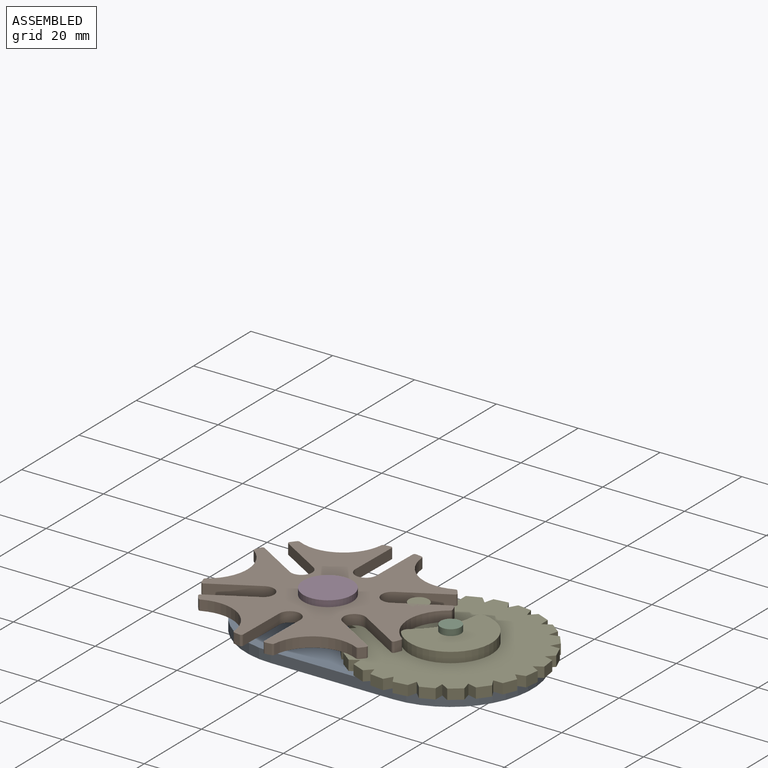
[diagram: assembled view]
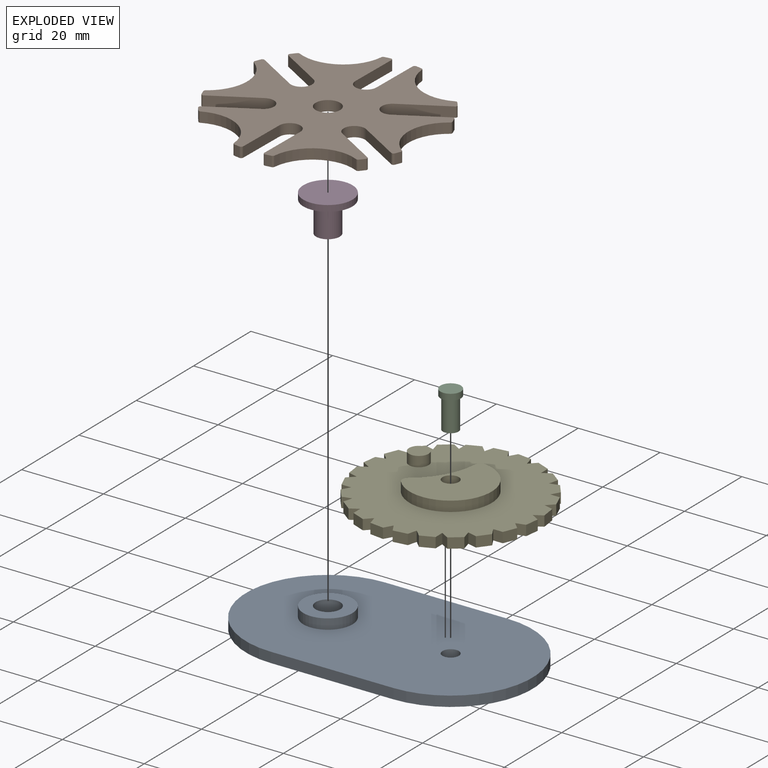
[diagram: exploded view]
GUIDED TOUR — MATED ASSEMBLY (Onshape document e8fcbac895ce5ac6a85feea2, AutoMate assembly e8fcbac895ce5ac6a85feea2_f703bed6a14e8e8e04eb389f_74b9abaeb7ac59ebc6e76224_default)

This assembly has 5 components, labeled P0..P4 below (a component is one placed occurrence of a part; the same part can appear more than once), held together by 8 mates. A mate is a constraint between two components; its type names the relative motion it leaves free:
  CYLINDRICAL — leaves both rotation about and translation along the listed axis free,
  PLANAR — leaves sliding in the plane through the listed point (normal = the listed direction) and rotation about that normal free.
Axis/direction vectors are unit vectors and 'through' points are millimeter coordinates, both in the assembly's world frame.

MATES
  1. CYLINDRICAL "Cylindrical 4": P0 <-> P2, axis (0.000, 0.000, -1.000) through (25.08, -28.87, -20.59) mm
  2. CYLINDRICAL "Cylindrical 5": P4 <-> P0, axis (0.000, 0.000, -1.000) through (25.08, -28.87, -18.09) mm
  3. PLANAR "Planar 3": P3 <-> P1, direction (0.000, 0.000, -1.000) through (-4.92, -28.87, -13.09) mm
  4. CYLINDRICAL "Cylindrical 1": P1 <-> P0, axis (0.000, 0.000, -1.000) through (-4.92, -28.87, -15.59) mm
  5. CYLINDRICAL "Cylindrical 3": P3 <-> P0, axis (0.000, 0.000, -1.000) through (-4.92, -28.87, -20.59) mm
  6. PLANAR "Planar 1": P1 <-> P0, direction (0.000, 0.000, -1.000) through (-4.92, -28.87, -15.59) mm
  7. PLANAR "Planar 4": P2 <-> P0, direction (0.000, 0.000, -1.000) through (25.08, -28.87, -20.59) mm
  8. PLANAR "Planar 2": P4 <-> P0, direction (0.000, 0.000, -1.000) through (25.08, -28.87, -18.09) mm

ASSEMBLY ORDER
  1. P0 — the base component [order heuristic]
  2. P4 — core [order heuristic]
  3. P2 [order verified]
  4. P1 — core [order heuristic]
  5. P3 — core [order heuristic]
Order-tag legend:
  [order verified] — this step's position reverses a verified removal order: the component was checked to insert without passing through the ones already placed.
  [order heuristic] — the first 4 components form the assembly's core: parts whose collision-free extraction could not be verified, listed in mate-graph order.

Of the 5 components, 3 carry the full construction recipe — the FeatureScript program that regenerates the part's solid from scratch; the rest are supplied as boundary geometry only.
Each toured component is shown spotlighted twice — in the assembled view, then in the exploded view, where a leader line traces a displaced component back to its assembled socket (saturated green if recipe-attached, orange if geometry-only; every other component desaturated gray) — followed by its recipe or geometry summary and the mates that hold it.
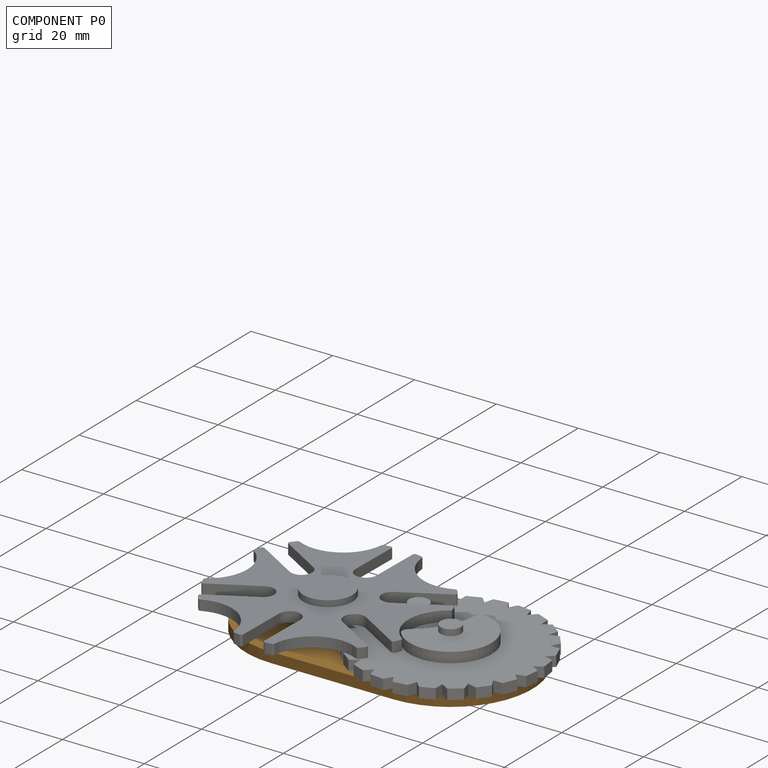
[diagram: component P0 — assembled]
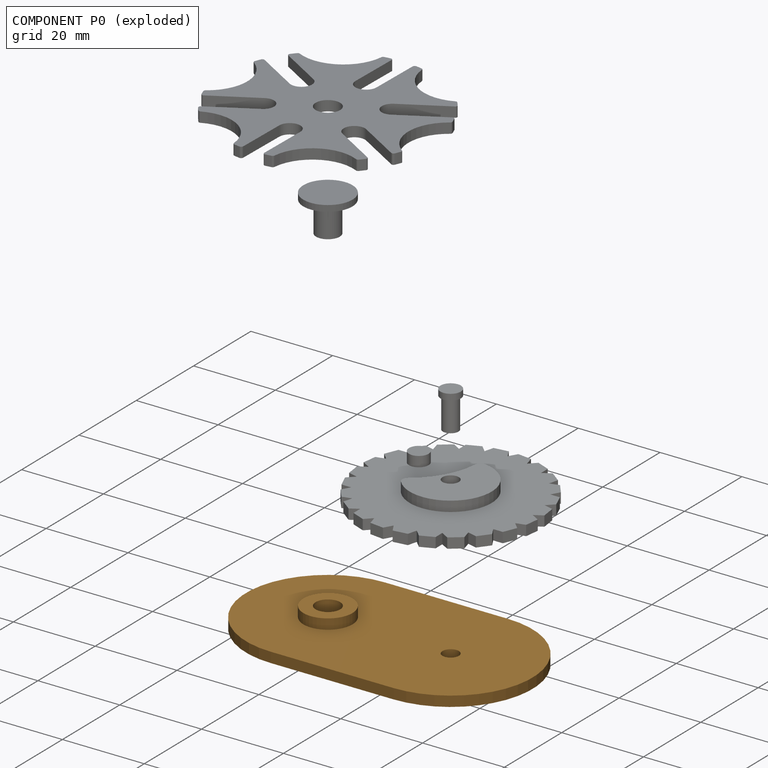
[diagram: component P0 — exploded]
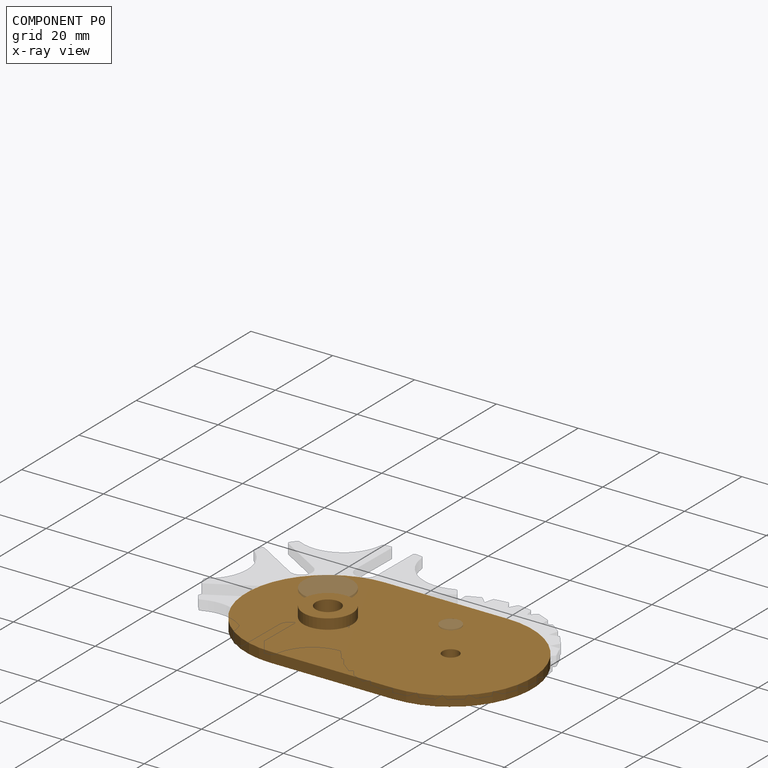
[diagram: component P0 — x-ray view]
COMPONENT P0 — geometry summary (no construction recipe available for this part):
  bounding box: 70.0 x 40.0 x 5.0 mm
  B-rep topology: 1 solid, 10 faces, 42 edges
  volume: 6252 mm^3 (45% of its bounding box)
  symmetry: mirror-symmetric across its y mid-plane
Held by: CYLINDRICAL mate "Cylindrical 4" to P2; CYLINDRICAL mate "Cylindrical 5" to P4; CYLINDRICAL mate "Cylindrical 1" to P1; CYLINDRICAL mate "Cylindrical 3" to P3; PLANAR mate "Planar 1" to P1; PLANAR mate "Planar 4" to P2; PLANAR mate "Planar 2" to P4.
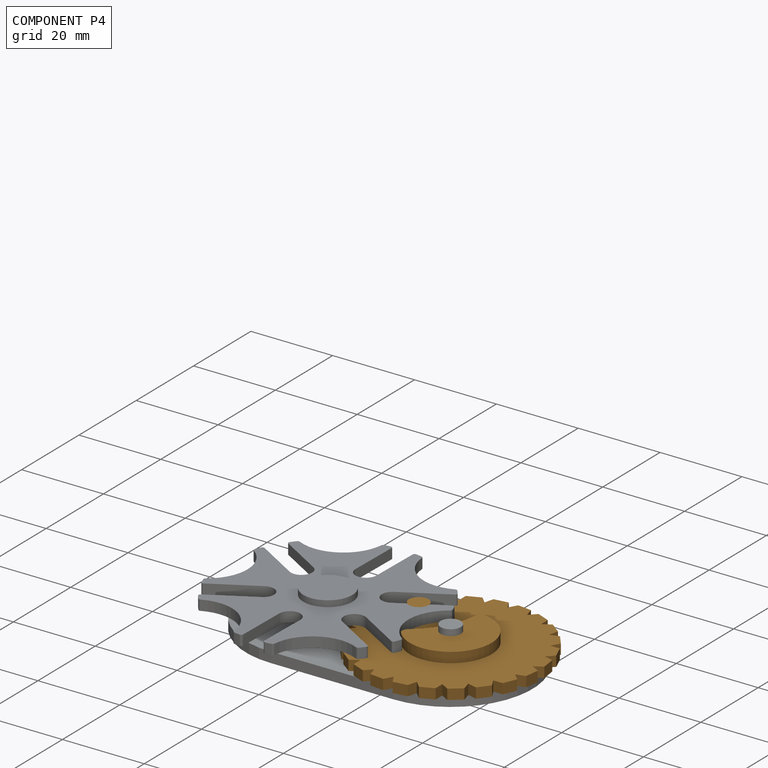
[diagram: component P4 — assembled]
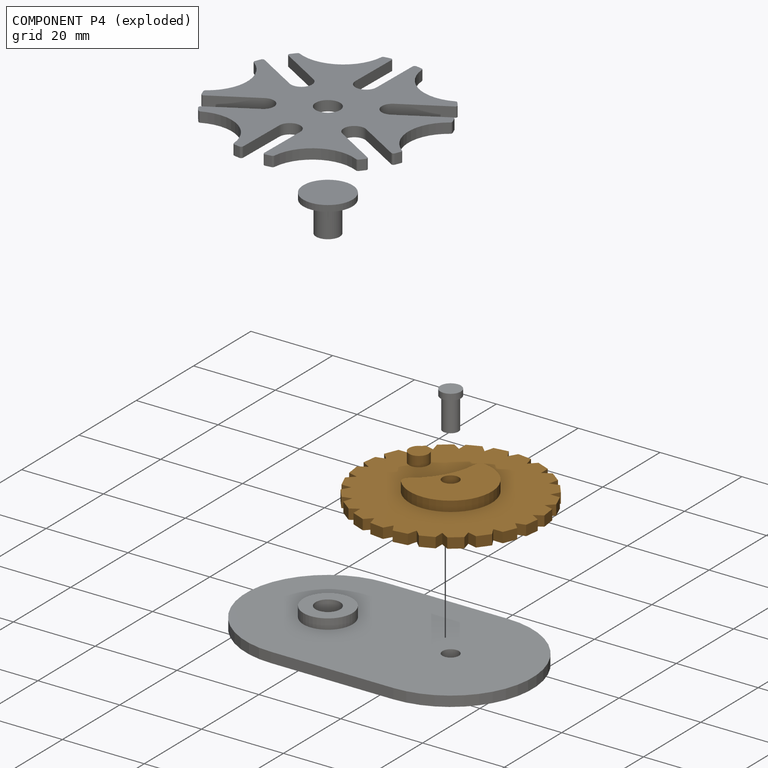
[diagram: component P4 — exploded]
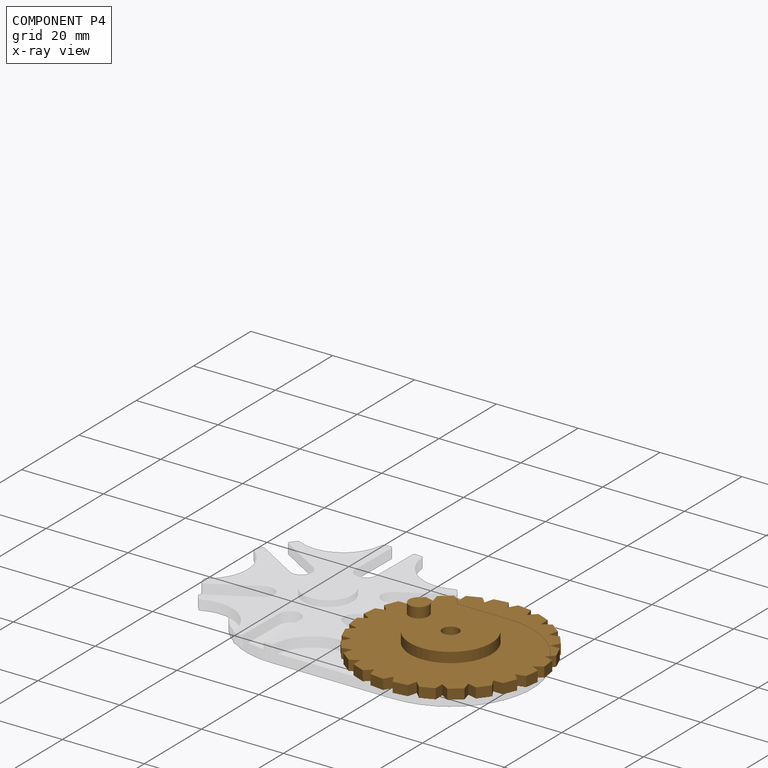
[diagram: component P4 — x-ray view]
COMPONENT P4 — geometry summary (no construction recipe available for this part):
  bounding box: 44.1 x 44.1 x 5.0 mm
  B-rep topology: 1 solid, 82 faces, 468 edges
  volume: 4212 mm^3 (43% of its bounding box)
Held by: CYLINDRICAL mate "Cylindrical 5" to P0; PLANAR mate "Planar 2" to P0.
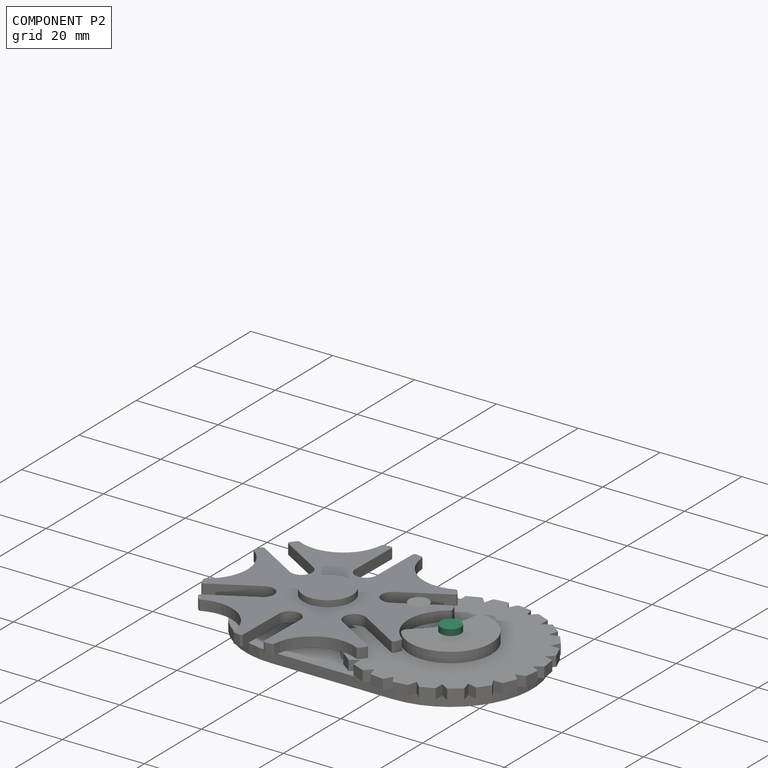
[diagram: component P2 — assembled]
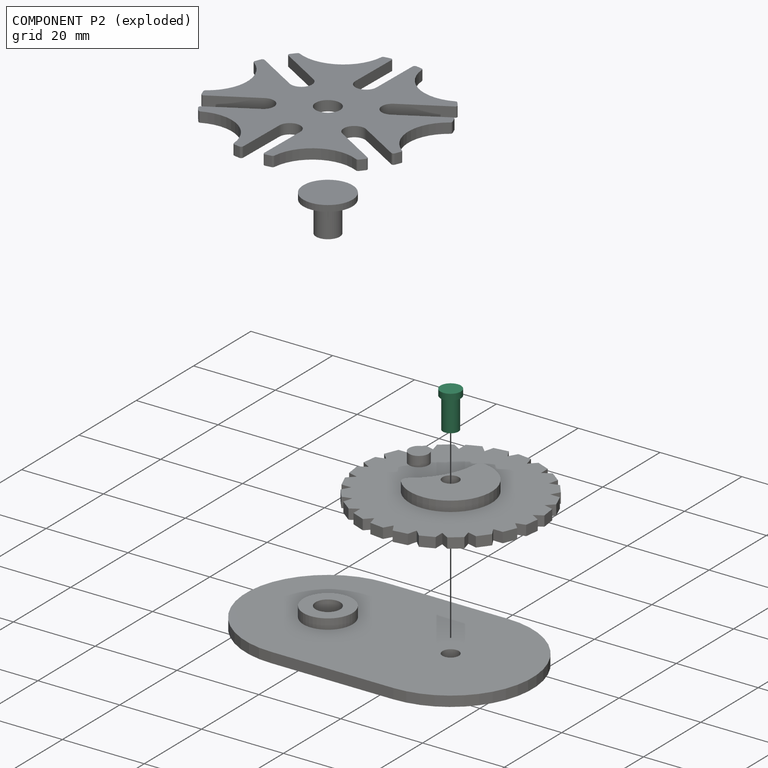
[diagram: component P2 — exploded]
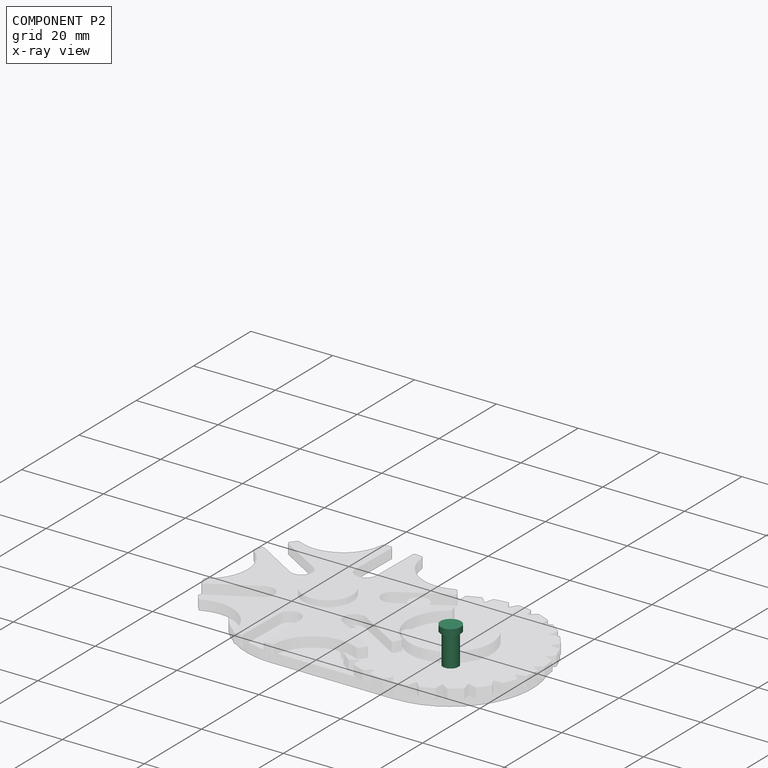
[diagram: component P2 — x-ray view]
COMPONENT P2 — recipe-attached (CADFS 00344671, mesh-verified: the recipe's output STEP matches this component's geometry to below the mesh-comparison resolution (tessellation chordal tolerance ~0.0172 mm)).
Held by: CYLINDRICAL mate "Cylindrical 4" to P0; PLANAR mate "Planar 4" to P0.
Construction recipe (FeatureScript — the CAD program that rebuilds this solid; sketch coordinates are in the units given by the * unit suffixes, e.g. mm):

FeatureScript 1511;
import(path : "onshape/std/geometry.fs", version : "1511.0");
import(path : "onshape/std/common.fs", version : "1511.0");
const mm = millimeter;
const VERTEX = EntityType.VERTEX;
const EDGE = EntityType.EDGE;
const FACE = EntityType.FACE;
const BODY = EntityType.BODY;
function v(x, y){return vector(x, y);}
function OD(order){return orderDisambiguation(order);}
function OSD(set){return originalSetDisambiguation(set);}
function TD(topology){return topologyDisambiguation(topology);}
function TDD(query){return trueDependencyDisambiguation(query);}
function sQuery(a, b, c) {return sketchEntityQuery(a, b, c);}

annotation { "Feature Type Name" : "Feature", "Feature Type Description" : "" }
export const myFeature = defineFeature(function(context is Context, id is Id, definition is map)
    precondition{}
    {
        {
            var Q0;
            Q0=qCreatedBy(makeId("Top.planeOp"),FACE);
            var sketch = newSketch(context, id + "F0", { "sketchPlane" : qUnion([Q0])});
            skCircle(sketch, "E0", {"center": v(0, 0) * mm, "radius": 1.9 * mm});
            skCircle(sketch, "E1", {"center": v(0, 0) * mm, "radius": 2.5 * mm});
            skSolve(sketch);
        }
        {
            var Q0;
            Q0=makeQuery(id+"F0.imprint","IMPRINT",FACE,{"disambiguationData":[TD([[makeQuery(id+"F0.imprint","IMPRINT",EDGE,{"derivedFrom":sQuery(id+"F0.wireOp",EDGE,"E0")}),1.0]])]});
            extrude(context, id + "F1", {"entities" : qUnion([Q0]), "oppositeDirection" : true, "depth" : 7.5 * mm});
        }
        {
            var Q0;
            Q0 = qSketchRegion(id + "F0", true);
            var Q1;
            Q1=makeQuery(id+"F0.imprint","IMPRINT",FACE,{"disambiguationData":[TD([[makeQuery(id+"F0.imprint","IMPRINT",EDGE,{"derivedFrom":sQuery(id+"F0.wireOp",EDGE,"E0")}),1.0]])]});
            extrude(context, id + "F2", {"entities" : qUnion([Q0, Q1]), "operationType" : NewBodyOperationType.ADD, "depth" : 1.5 * mm});
        }
    });
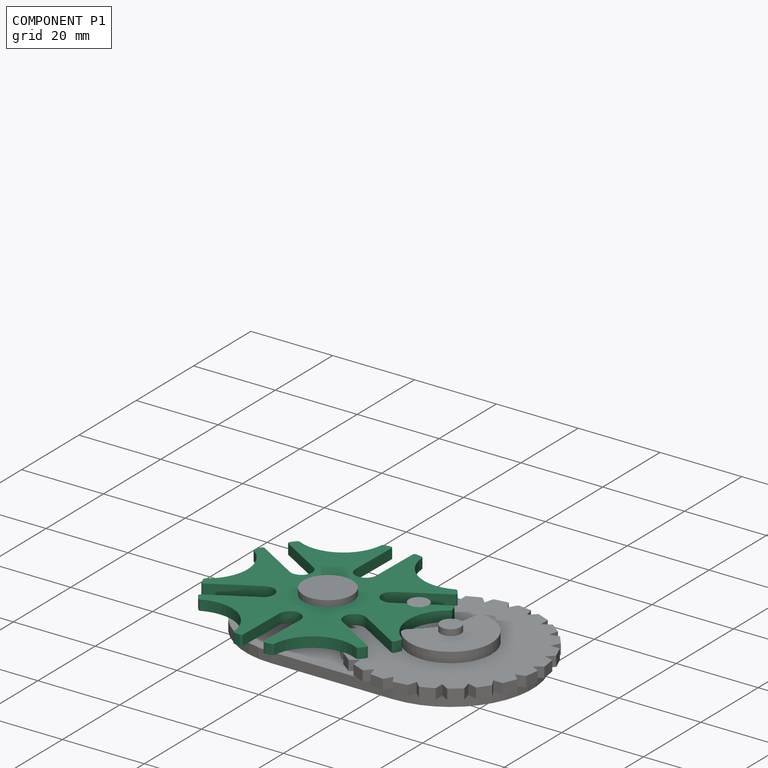
[diagram: component P1 — assembled]
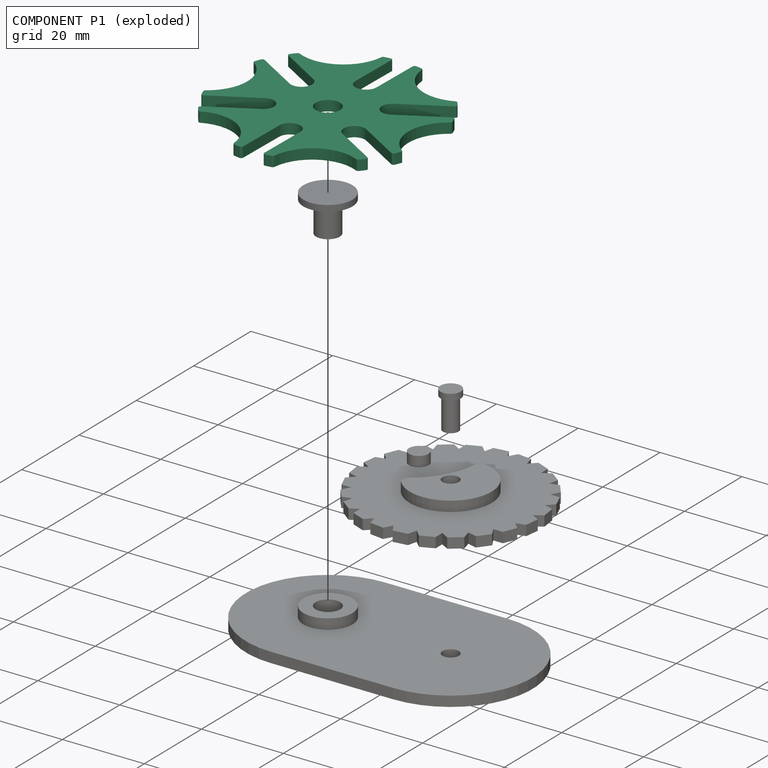
[diagram: component P1 — exploded]
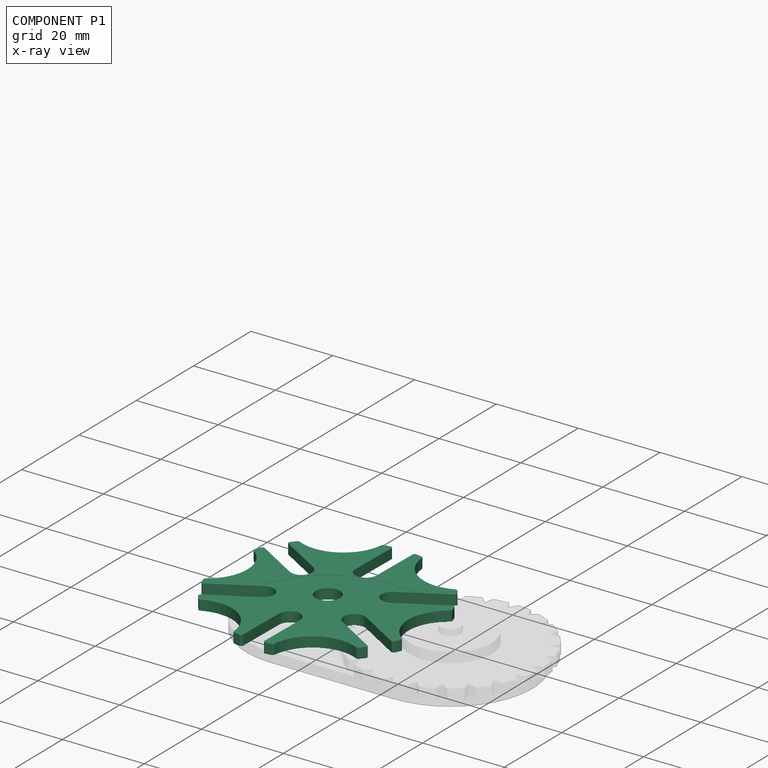
[diagram: component P1 — x-ray view]
COMPONENT P1 — recipe-attached (CADFS 00344669, mesh-verified: the recipe's output STEP matches this component's geometry to below the mesh-comparison resolution (tessellation chordal tolerance ~0.107 mm)).
Held by: PLANAR mate "Planar 3" to P3; CYLINDRICAL mate "Cylindrical 1" to P0; PLANAR mate "Planar 1" to P0.
Construction recipe (FeatureScript — the CAD program that rebuilds this solid; sketch coordinates are in the units given by the * unit suffixes, e.g. mm):

FeatureScript 1511;
import(path : "onshape/std/geometry.fs", version : "1511.0");
import(path : "onshape/std/common.fs", version : "1511.0");
const mm = millimeter;
const VERTEX = EntityType.VERTEX;
const EDGE = EntityType.EDGE;
const FACE = EntityType.FACE;
const BODY = EntityType.BODY;
function v(x, y){return vector(x, y);}
function OD(order){return orderDisambiguation(order);}
function OSD(set){return originalSetDisambiguation(set);}
function TD(topology){return topologyDisambiguation(topology);}
function TDD(query){return trueDependencyDisambiguation(query);}
function sQuery(a, b, c) {return sketchEntityQuery(a, b, c);}

annotation { "Feature Type Name" : "Feature", "Feature Type Description" : "" }
export const myFeature = defineFeature(function(context is Context, id is Id, definition is map)
    precondition{}
    {
        {
            var Q0;
            Q0=qCreatedBy(makeId("Top.planeOp"),FACE);
            var sketch = newSketch(context, id + "F0", { "sketchPlane" : qUnion([Q0])});
            skLineSegment(sketch, "E0", {"start": v(0, 0) * mm, "end": v(22.5, 13) * mm, "construction": true});
            skLineSegment(sketch, "E1", {"start": v(22.5, 13) * mm, "end": v(30, 0) * mm});
            skLineSegment(sketch, "E2", {"start": v(30, 0) * mm, "end": v(0, 0) * mm, "construction": true});
            skCircle(sketch, "E3", {"center": v(0, 0) * mm, "radius": 25.98 * mm, "construction": true});
            skLineSegment(sketch, "E4", {"start": v(30, 0) * mm, "end": v(20, 17.32) * mm, "construction": true});
            skLineSegment(sketch, "E5", {"start": v(20, 17.32) * mm, "end": v(20, 0) * mm, "construction": true});
            skLineSegment(sketch, "E6", {"start": v(21.09, 15.18) * mm, "end": v(9.95, 8.75) * mm});
            skLineSegment(sketch, "E7", {"start": v(23.69, 10.67) * mm, "end": v(12.55, 4.24) * mm});
            skArc(sketch, "E8", {"start": v(9.95, 8.75) * mm, "mid": v(9, 5.2) * mm, "end": v(12.55, 4.24) * mm});
            skArc(sketch, "E9", {"start": v(24.58, 8.4) * mm, "mid": v(20, 0) * mm, "end": v(24.58, -8.4) * mm});
            skArc(sketch, "E10", {"start": v(23.69, 10.67) * mm, "mid": v(24.16, 9.55) * mm, "end": v(24.58, 8.4) * mm});
            skArc(sketch, "E11.MirrorCS", {"start": v(21.09, 15.18) * mm, "mid": v(20.35, 16.15) * mm, "end": v(19.57, 17.09) * mm});
            skArc(sketch, "E12.1.0", {"start": v(-2.6, 25.85) * mm, "mid": v(-3.81, 25.7) * mm, "end": v(-5.01, 25.5) * mm});
            skLineSegment(sketch, "E12.1.1", {"start": v(-2.6, 25.85) * mm, "end": v(-2.6, 13) * mm});
            skArc(sketch, "E12.1.2", {"start": v(-2.6, 13) * mm, "mid": v(0, 10.4) * mm, "end": v(2.6, 13) * mm});
            skLineSegment(sketch, "E12.1.3", {"start": v(2.6, 25.85) * mm, "end": v(2.6, 13) * mm});
            skArc(sketch, "E12.1.4", {"start": v(2.6, 25.85) * mm, "mid": v(3.81, 25.7) * mm, "end": v(5.01, 25.5) * mm});
            skArc(sketch, "E12.1.5", {"start": v(5.01, 25.5) * mm, "mid": v(10, 17.32) * mm, "end": v(19.57, 17.09) * mm});
            skArc(sketch, "E12.2.0", {"start": v(-23.69, 10.67) * mm, "mid": v(-24.16, 9.55) * mm, "end": v(-24.58, 8.4) * mm});
            skLineSegment(sketch, "E12.2.1", {"start": v(-23.69, 10.67) * mm, "end": v(-12.55, 4.24) * mm});
            skArc(sketch, "E12.2.2", {"start": v(-12.55, 4.24) * mm, "mid": v(-9, 5.2) * mm, "end": v(-9.95, 8.75) * mm});
            skLineSegment(sketch, "E12.2.3", {"start": v(-21.09, 15.18) * mm, "end": v(-9.95, 8.75) * mm});
            skArc(sketch, "E12.2.4", {"start": v(-21.09, 15.18) * mm, "mid": v(-20.35, 16.15) * mm, "end": v(-19.57, 17.09) * mm});
            skArc(sketch, "E12.2.5", {"start": v(-19.57, 17.09) * mm, "mid": v(-10, 17.32) * mm, "end": v(-5.01, 25.5) * mm});
            skArc(sketch, "E12.3.0", {"start": v(-21.09, -15.18) * mm, "mid": v(-20.35, -16.15) * mm, "end": v(-19.57, -17.09) * mm});
            skLineSegment(sketch, "E12.3.1", {"start": v(-21.09, -15.18) * mm, "end": v(-9.95, -8.75) * mm});
            skArc(sketch, "E12.3.2", {"start": v(-9.95, -8.75) * mm, "mid": v(-9, -5.2) * mm, "end": v(-12.55, -4.24) * mm});
            skLineSegment(sketch, "E12.3.3", {"start": v(-23.69, -10.67) * mm, "end": v(-12.55, -4.24) * mm});
            skArc(sketch, "E12.3.4", {"start": v(-23.69, -10.67) * mm, "mid": v(-24.16, -9.55) * mm, "end": v(-24.58, -8.4) * mm});
            skArc(sketch, "E12.3.5", {"start": v(-24.58, -8.4) * mm, "mid": v(-20, 0) * mm, "end": v(-24.58, 8.4) * mm});
            skArc(sketch, "E12.4.0", {"start": v(2.6, -25.85) * mm, "mid": v(3.81, -25.7) * mm, "end": v(5.01, -25.5) * mm});
            skLineSegment(sketch, "E12.4.1", {"start": v(2.6, -25.85) * mm, "end": v(2.6, -13) * mm});
            skArc(sketch, "E12.4.2", {"start": v(2.6, -13) * mm, "mid": v(0, -10.4) * mm, "end": v(-2.6, -13) * mm});
            skLineSegment(sketch, "E12.4.3", {"start": v(-2.6, -25.85) * mm, "end": v(-2.6, -13) * mm});
            skArc(sketch, "E12.4.4", {"start": v(-2.6, -25.85) * mm, "mid": v(-3.81, -25.7) * mm, "end": v(-5.01, -25.5) * mm});
            skArc(sketch, "E12.4.5", {"start": v(-5.01, -25.5) * mm, "mid": v(-10, -17.32) * mm, "end": v(-19.57, -17.09) * mm});
            skCircle(sketch, "E13", {"center": v(0, 0) * mm, "radius": 3 * mm});
            skArc(sketch, "E14.2.5.0", {"start": v(23.69, -10.67) * mm, "mid": v(24.16, -9.55) * mm, "end": v(24.58, -8.4) * mm});
            skLineSegment(sketch, "E14.4.5.0", {"start": v(23.69, -10.67) * mm, "end": v(12.55, -4.24) * mm});
            skArc(sketch, "E14.7.5.0", {"start": v(12.55, -4.24) * mm, "mid": v(9, -5.2) * mm, "end": v(9.95, -8.75) * mm});
            skLineSegment(sketch, "E14.11.5.0", {"start": v(21.09, -15.18) * mm, "end": v(9.95, -8.75) * mm});
            skArc(sketch, "E14.14.5.0", {"start": v(21.09, -15.18) * mm, "mid": v(20.35, -16.15) * mm, "end": v(19.57, -17.09) * mm});
            skArc(sketch, "E14.18.5.0", {"start": v(19.57, -17.09) * mm, "mid": v(10, -17.32) * mm, "end": v(5.01, -25.5) * mm});
            skSolve(sketch);
        }
        {
            var Q0;
            Q0=makeQuery(id+"F0.imprint","IMPRINT",FACE,{"disambiguationData":[TD([[makeQuery(id+"F0.imprint","IMPRINT",EDGE,{"derivedFrom":sQuery(id+"F0.wireOp",EDGE,"E6")}),-1.0]])]});
            extrude(context, id + "F1", {"entities" : qUnion([Q0]), "depth" : 2.5 * mm});
        }
        {
            var Q0;
            Q0=makeQuery(id+"F1.opExtrude","SWEPT_EDGE",EDGE,{"disambiguationData":[OSD([sQuery(id+"F0.wireOp",EDGE,"E14.2.5.0"),sQuery(id+"F0.wireOp",EDGE,"E14.4.5.0")])]});
            var Q1;
            Q1=makeQuery(id+"F1.opExtrude","SWEPT_EDGE",EDGE,{"disambiguationData":[OSD([sQuery(id+"F0.wireOp",EDGE,"E14.11.5.0"),sQuery(id+"F0.wireOp",EDGE,"E14.14.5.0")])]});
            var Q2;
            Q2=makeQuery(id+"F1.opExtrude","SWEPT_EDGE",EDGE,{"disambiguationData":[OSD([sQuery(id+"F0.wireOp",EDGE,"E9"),sQuery(id+"F0.wireOp",EDGE,"E14.2.5.0")])]});
            var Q3;
            Q3=makeQuery(id+"F1.opExtrude","SWEPT_EDGE",EDGE,{"disambiguationData":[OSD([sQuery(id+"F0.wireOp",EDGE,"E14.14.5.0"),sQuery(id+"F0.wireOp",EDGE,"E14.18.5.0")])]});
            var Q4;
            Q4=makeQuery(id+"F1.opExtrude","SWEPT_EDGE",EDGE,{"disambiguationData":[OSD([sQuery(id+"F0.wireOp",EDGE,"E12.4.0"),sQuery(id+"F0.wireOp",EDGE,"E14.18.5.0")])]});
            var Q5;
            Q5=makeQuery(id+"F1.opExtrude","SWEPT_EDGE",EDGE,{"disambiguationData":[OSD([sQuery(id+"F0.wireOp",EDGE,"E12.4.0"),sQuery(id+"F0.wireOp",EDGE,"E12.4.1")])]});
            var Q6;
            Q6=makeQuery(id+"F1.opExtrude","SWEPT_EDGE",EDGE,{"disambiguationData":[OSD([sQuery(id+"F0.wireOp",EDGE,"E12.4.3"),sQuery(id+"F0.wireOp",EDGE,"E12.4.4")])]});
            var Q7;
            Q7=makeQuery(id+"F1.opExtrude","SWEPT_EDGE",EDGE,{"disambiguationData":[OSD([sQuery(id+"F0.wireOp",EDGE,"E12.4.4"),sQuery(id+"F0.wireOp",EDGE,"E12.4.5")])]});
            var Q8;
            Q8=makeQuery(id+"F1.opExtrude","SWEPT_EDGE",EDGE,{"disambiguationData":[OSD([sQuery(id+"F0.wireOp",EDGE,"E12.3.0"),sQuery(id+"F0.wireOp",EDGE,"E12.3.1")])]});
            var Q9;
            Q9=makeQuery(id+"F1.opExtrude","SWEPT_EDGE",EDGE,{"disambiguationData":[OSD([sQuery(id+"F0.wireOp",EDGE,"E12.3.0"),sQuery(id+"F0.wireOp",EDGE,"E12.4.5")])]});
            var Q10;
            Q10=makeQuery(id+"F1.opExtrude","SWEPT_EDGE",EDGE,{"disambiguationData":[OSD([sQuery(id+"F0.wireOp",EDGE,"E12.3.3"),sQuery(id+"F0.wireOp",EDGE,"E12.3.4")])]});
            var Q11;
            Q11=makeQuery(id+"F1.opExtrude","SWEPT_EDGE",EDGE,{"disambiguationData":[OSD([sQuery(id+"F0.wireOp",EDGE,"E12.3.4"),sQuery(id+"F0.wireOp",EDGE,"E12.3.5")])]});
            var Q12;
            Q12=makeQuery(id+"F1.opExtrude","SWEPT_EDGE",EDGE,{"disambiguationData":[OSD([sQuery(id+"F0.wireOp",EDGE,"E12.2.0"),sQuery(id+"F0.wireOp",EDGE,"E12.2.1")])]});
            var Q13;
            Q13=makeQuery(id+"F1.opExtrude","SWEPT_EDGE",EDGE,{"disambiguationData":[OSD([sQuery(id+"F0.wireOp",EDGE,"E12.2.0"),sQuery(id+"F0.wireOp",EDGE,"E12.3.5")])]});
            var Q14;
            Q14=makeQuery(id+"F1.opExtrude","SWEPT_EDGE",EDGE,{"disambiguationData":[OSD([sQuery(id+"F0.wireOp",EDGE,"E12.2.3"),sQuery(id+"F0.wireOp",EDGE,"E12.2.4")])]});
            var Q15;
            Q15=makeQuery(id+"F1.opExtrude","SWEPT_EDGE",EDGE,{"disambiguationData":[OSD([sQuery(id+"F0.wireOp",EDGE,"E12.2.4"),sQuery(id+"F0.wireOp",EDGE,"E12.2.5")])]});
            var Q16;
            Q16=makeQuery(id+"F1.opExtrude","SWEPT_EDGE",EDGE,{"disambiguationData":[OSD([sQuery(id+"F0.wireOp",EDGE,"E12.1.0"),sQuery(id+"F0.wireOp",EDGE,"E12.2.5")])]});
            var Q17;
            Q17=makeQuery(id+"F1.opExtrude","SWEPT_EDGE",EDGE,{"disambiguationData":[OSD([sQuery(id+"F0.wireOp",EDGE,"E12.1.0"),sQuery(id+"F0.wireOp",EDGE,"E12.1.1")])]});
            var Q18;
            Q18=makeQuery(id+"F1.opExtrude","SWEPT_EDGE",EDGE,{"disambiguationData":[OSD([sQuery(id+"F0.wireOp",EDGE,"E12.1.3"),sQuery(id+"F0.wireOp",EDGE,"E12.1.4")])]});
            var Q19;
            Q19=makeQuery(id+"F1.opExtrude","SWEPT_EDGE",EDGE,{"disambiguationData":[OSD([sQuery(id+"F0.wireOp",EDGE,"E12.1.4"),sQuery(id+"F0.wireOp",EDGE,"E12.1.5")])]});
            var Q20;
            Q20=makeQuery(id+"F1.opExtrude","SWEPT_EDGE",EDGE,{"disambiguationData":[OSD([sQuery(id+"F0.wireOp",EDGE,"E6"),sQuery(id+"F0.wireOp",EDGE,"E11.MirrorCS")])]});
            var Q21;
            Q21=makeQuery(id+"F1.opExtrude","SWEPT_EDGE",EDGE,{"disambiguationData":[OSD([sQuery(id+"F0.wireOp",EDGE,"E11.MirrorCS"),sQuery(id+"F0.wireOp",EDGE,"E12.1.5")])]});
            var Q22;
            Q22=makeQuery(id+"F1.opExtrude","SWEPT_EDGE",EDGE,{"disambiguationData":[OSD([sQuery(id+"F0.wireOp",EDGE,"E7"),sQuery(id+"F0.wireOp",EDGE,"E10")])]});
            var Q23;
            Q23=makeQuery(id+"F1.opExtrude","SWEPT_EDGE",EDGE,{"disambiguationData":[OSD([sQuery(id+"F0.wireOp",EDGE,"E9"),sQuery(id+"F0.wireOp",EDGE,"E10")])]});
            fillet(context, id + "F2", {"entities" : qUnion([Q0, Q1, Q2, Q3, Q4, Q5, Q6, Q7, Q8, Q9, Q10, Q11, Q12, Q13, Q14, Q15, Q16, Q17, Q18, Q19, Q20, Q21, Q22, Q23]), "radius" : 0.5 * mm, "tangentPropagation" : true, "allowEdgeOverflow" : false});
        }
    });
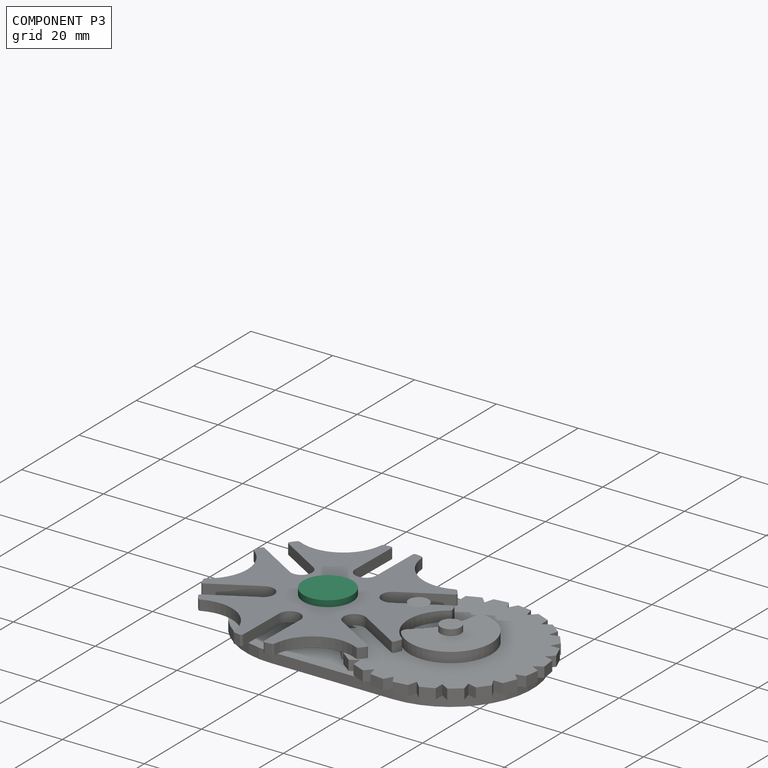
[diagram: component P3 — assembled]
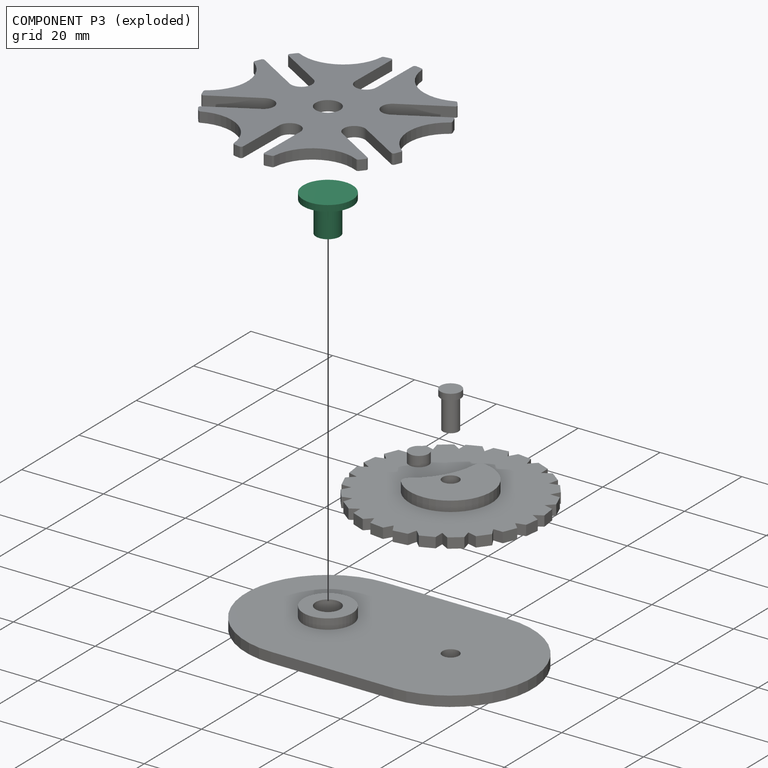
[diagram: component P3 — exploded]
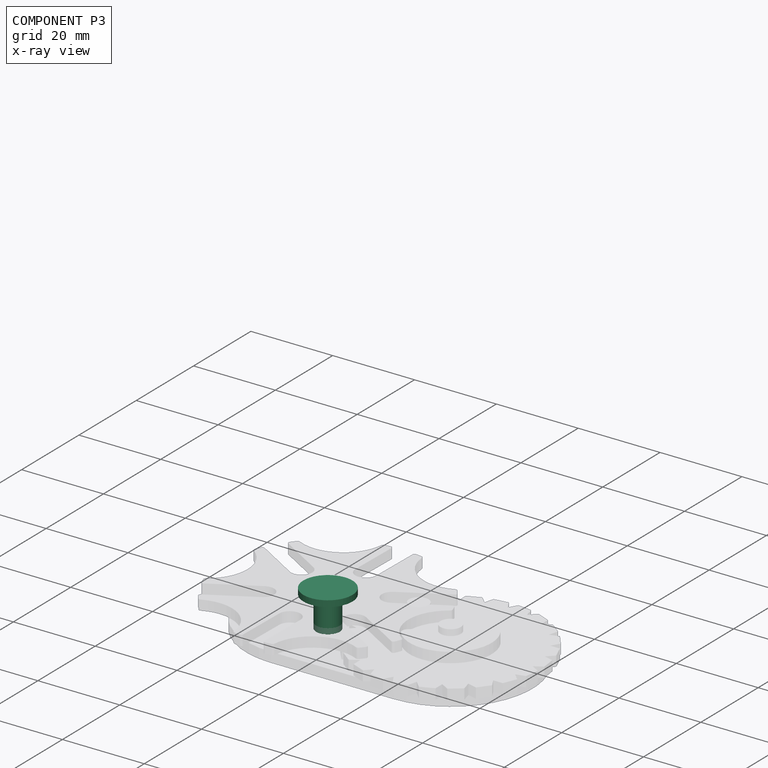
[diagram: component P3 — x-ray view]
COMPONENT P3 — recipe-attached (CADFS 00344672, mesh-verified: the recipe's output STEP matches this component's geometry to below the mesh-comparison resolution (tessellation chordal tolerance ~0.0288 mm)).
Held by: PLANAR mate "Planar 3" to P1; CYLINDRICAL mate "Cylindrical 3" to P0.
Construction recipe (FeatureScript — the CAD program that rebuilds this solid; sketch coordinates are in the units given by the * unit suffixes, e.g. mm):

FeatureScript 1511;
import(path : "onshape/std/geometry.fs", version : "1511.0");
import(path : "onshape/std/common.fs", version : "1511.0");
const mm = millimeter;
const VERTEX = EntityType.VERTEX;
const EDGE = EntityType.EDGE;
const FACE = EntityType.FACE;
const BODY = EntityType.BODY;
function v(x, y){return vector(x, y);}
function OD(order){return orderDisambiguation(order);}
function OSD(set){return originalSetDisambiguation(set);}
function TD(topology){return topologyDisambiguation(topology);}
function TDD(query){return trueDependencyDisambiguation(query);}
function sQuery(a, b, c) {return sketchEntityQuery(a, b, c);}

annotation { "Feature Type Name" : "Feature", "Feature Type Description" : "" }
export const myFeature = defineFeature(function(context is Context, id is Id, definition is map)
    precondition{}
    {
        {
            var Q0;
            Q0=qCreatedBy(makeId("Top.planeOp"),FACE);
            var sketch = newSketch(context, id + "F0", { "sketchPlane" : qUnion([Q0])});
            skCircle(sketch, "E0", {"center": v(0, 0) * mm, "radius": 2.9 * mm});
            skCircle(sketch, "E1", {"center": v(0, 0) * mm, "radius": 6 * mm});
            skSolve(sketch);
        }
        {
            var Q0;
            Q0=makeQuery(id+"F0.imprint","IMPRINT",FACE,{"disambiguationData":[TD([[makeQuery(id+"F0.imprint","IMPRINT",EDGE,{"derivedFrom":sQuery(id+"F0.wireOp",EDGE,"E0")}),1.0]])]});
            extrude(context, id + "F1", {"entities" : qUnion([Q0]), "oppositeDirection" : true, "depth" : 7.5 * mm});
        }
        {
            var Q0;
            Q0=makeQuery(id+"F0.imprint","IMPRINT",FACE,{"disambiguationData":[TD([[makeQuery(id+"F0.imprint","IMPRINT",EDGE,{"derivedFrom":sQuery(id+"F0.wireOp",EDGE,"E0")}),-1.0]])]});
            var Q1;
            Q1=makeQuery(id+"F0.imprint","IMPRINT",FACE,{"disambiguationData":[TD([[makeQuery(id+"F0.imprint","IMPRINT",EDGE,{"derivedFrom":sQuery(id+"F0.wireOp",EDGE,"E0")}),1.0]])]});
            extrude(context, id + "F2", {"entities" : qUnion([Q0, Q1]), "operationType" : NewBodyOperationType.ADD, "depth" : 1.5 * mm});
        }
    });
PROVENANCE & LICENSES
Assembly (occurrences, transforms, mates, per-part STEP geometry): AutoMate dataset, Zenodo record 7776208, CC0.
Construction recipes: CADFS (HuggingFace VladPyatov/CADFS, CC-BY-4.0, layered over the ABC dataset), FeatureScript reconstruction programs keyed by ABC model id.
Join: ABC meta listings map ABC model id -> Onshape documentId; within a shared document, parts are matched by geometric signature (bounding-box dims + volume at 0.1% relative tolerance, exact B-rep face/solid counts).
Verification: 3 of this assembly's 5 components carry a recipe attachment, and every attachment is mesh-verified: the CADFS STEP and the AutoMate member STEP were compared as meshes in their shared local frame (symmetric sampled-point-to-mesh distance); worst across the 3 attachments: below the mesh-comparison resolution (tessellation chordal tolerance ~0.107 mm) on a 71 mm part.
Renders: orthographic iso camera (az 35 / el 25); the floor grid conveys scale (grid pitch printed in each image; no ruler). In the exploded view each component is displaced by its stored offset vector: the offsets alone carry the explosion direction (mate normal/axis signs are not orientation cues and do not encode it), and separation distances are assigned per mate-chain, not proportionally to assembly-order depth.
